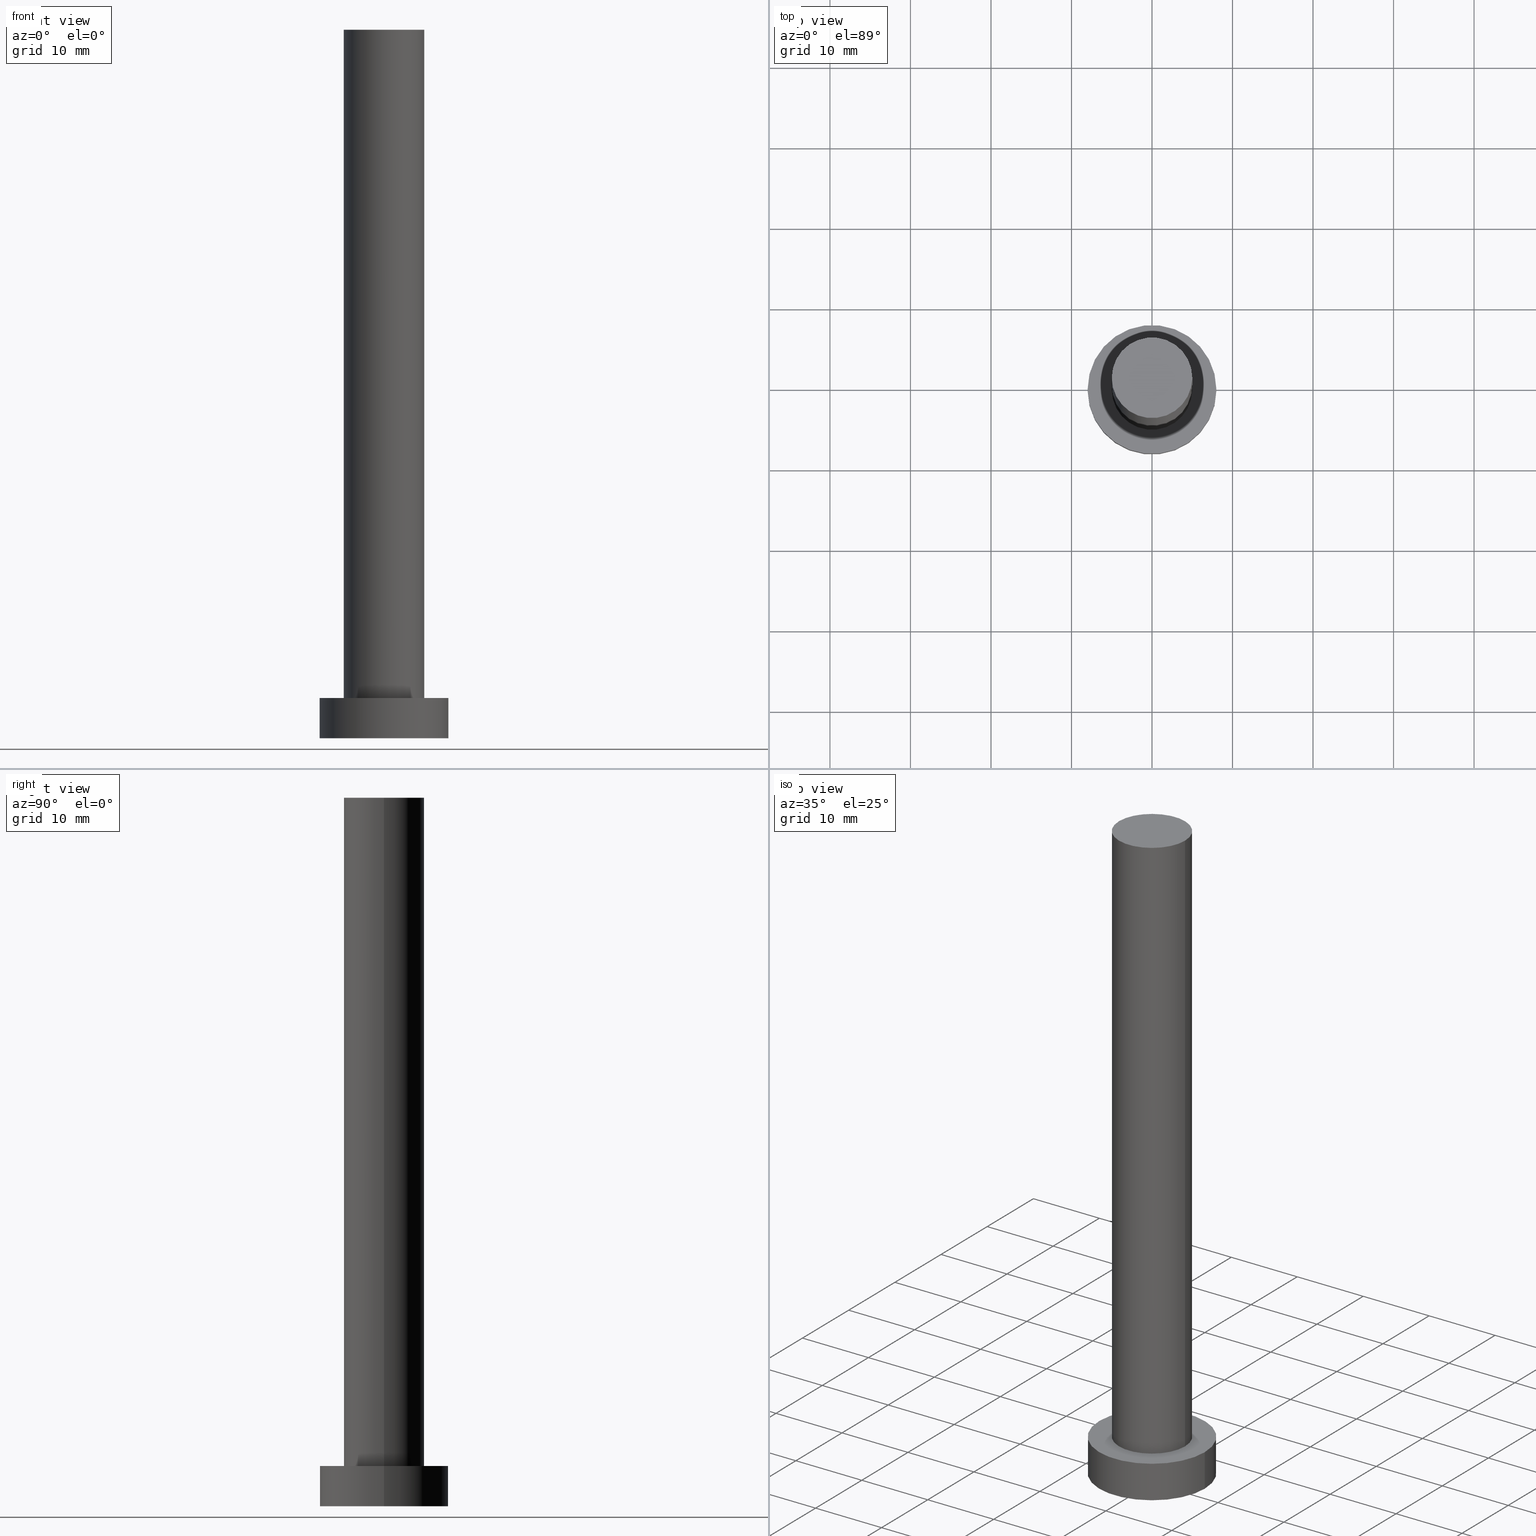
[diagram: canonical four-view strip — front | top / right | iso, engineering-drawing reading convention]
A machine part, canonical four-view strip (front | top / right | iso — engineering-drawing reading convention). The complete STEP part file that produces these views, byte-faithful:
ISO-10303-21;
HEADER;
FILE_DESCRIPTION (( 'STEP AP203' ),
    '1' );
FILE_NAME ('6906.STEP',
    '2023-04-06T08:41:40',
    ( '' ),
    ( '' ),
    'SwSTEP 2.0',
    'SolidWorks 2019',
    '' );
FILE_SCHEMA (( 'CONFIG_CONTROL_DESIGN' ));
ENDSEC;

DATA;
#1 = CARTESIAN_POINT ( 'NONE',  ( 5.000000000000000888, 6.123233995736767268E-16, 88.00000000000001421 ) ) ;
#2 = AXIS2_PLACEMENT_3D ( 'NONE', #106, #29, #48 ) ;
#3 = AXIS2_PLACEMENT_3D ( 'NONE', #208, #242, #210 ) ;
#4 = DIRECTION ( 'NONE',  ( 1.000000000000000000, 0.000000000000000000, -0.000000000000000000 ) ) ;
#5 = CARTESIAN_POINT ( 'NONE',  ( -5.000000000000000888, 0.000000000000000000, 5.000000000000000000 ) ) ;
#6 = ADVANCED_FACE ( 'NONE', ( #42 ), #15, .T. ) ;
#7 = APPROVAL_DATE_TIME ( #195, #139 ) ;
#8 = CALENDAR_DATE ( 2023, 6, 4 ) ;
#9 = LOCAL_TIME ( 10, 41, 40.00000000000000000, #111 ) ;
#10 = ADVANCED_FACE ( 'NONE', ( #181 ), #80, .T. ) ;
#11 = PERSON_AND_ORGANIZATION_ROLE ( 'creator' ) ;
#12 = APPROVAL_DATE_TIME ( #213, #131 ) ;
#13 = AXIS2_PLACEMENT_3D ( 'NONE', #28, #238, #243 ) ;
#14 = EDGE_CURVE ( 'NONE', #219, #202, #179, .T. ) ;
#15 = CYLINDRICAL_SURFACE ( 'NONE', #100, 8.000000000000000000 ) ;
#16 = DIRECTION ( 'NONE',  ( -1.000000000000000000, 0.000000000000000000, 0.000000000000000000 ) ) ;
#17 = LOCAL_TIME ( 10, 41, 40.00000000000000000, #174 ) ;
#18 = ORIENTED_EDGE ( 'NONE', *, *, #31, .F. ) ;
#19 = FACE_OUTER_BOUND ( 'NONE', #164, .T. ) ;
#20 = ORIENTED_EDGE ( 'NONE', *, *, #201, .T. ) ;
#21 = ADVANCED_FACE ( 'NONE', ( #19 ), #235, .T. ) ;
#22 = AXIS2_PLACEMENT_3D ( 'NONE', #192, #225, #171 ) ;
#23 = DIRECTION ( 'NONE',  ( -0.000000000000000000, -0.000000000000000000, -1.000000000000000000 ) ) ;
#24 = CARTESIAN_POINT ( 'NONE',  ( 0.000000000000000000, 0.000000000000000000, 5.000000000000000000 ) ) ;
#25 = PERSON ( 'NEUR�EN�', 'NEUR�EN�', 'NEUR�EN�', ('NEUR�EN�'), ('NEUR�EN�'), ('NEUR�EN�') ) ;
#26 = DIRECTION ( 'NONE',  ( 1.000000000000000000, 0.000000000000000000, -0.000000000000000000 ) ) ;
#27 = PRODUCT ( '6906', '6906', '', ( #88 ) ) ;
#28 = CARTESIAN_POINT ( 'NONE',  ( 0.000000000000000000, 0.000000000000000000, 5.000000000000000000 ) ) ;
#29 = DIRECTION ( 'NONE',  ( -0.000000000000000000, -0.000000000000000000, -1.000000000000000000 ) ) ;
#30 = PERSON_AND_ORGANIZATION_ROLE ( 'design_supplier' ) ;
#31 = EDGE_CURVE ( 'NONE', #119, #205, #132, .T. ) ;
#32 = PERSON_AND_ORGANIZATION ( #25, #92 ) ;
#33 = APPLICATION_PROTOCOL_DEFINITION ( 'international standard', 'config_control_design', 1994, #34 ) ;
#34 = APPLICATION_CONTEXT ( 'configuration controlled 3d designs of mechanical parts and assemblies' ) ;
#35 = DATE_TIME_ROLE ( 'classification_date' ) ;
#36 = PRODUCT_DEFINITION ( 'NEZN�M�', '', #121, #198 ) ;
#37 = CC_DESIGN_APPROVAL ( #191, ( #121 ) ) ;
#38 = ORIENTED_EDGE ( 'NONE', *, *, #239, .T. ) ;
#39 = ORIENTED_EDGE ( 'NONE', *, *, #196, .T. ) ;
#40 = ORIENTED_EDGE ( 'NONE', *, *, #31, .T. ) ;
#41 = AXIS2_PLACEMENT_3D ( 'NONE', #177, #149, #245 ) ;
#42 = FACE_OUTER_BOUND ( 'NONE', #218, .T. ) ;
#43 = VERTEX_POINT ( 'NONE', #86 ) ;
#44 = DIRECTION ( 'NONE',  ( 0.000000000000000000, 0.000000000000000000, 1.000000000000000000 ) ) ;
#45 = CIRCLE ( 'NONE', #193, 5.000000000000000888 ) ;
#46 = AXIS2_PLACEMENT_3D ( 'NONE', #95, #252, #162 ) ;
#47 = PLANE ( 'NONE',  #230 ) ;
#48 = DIRECTION ( 'NONE',  ( -1.000000000000000000, 0.000000000000000000, 0.000000000000000000 ) ) ;
#49 = CC_DESIGN_PERSON_AND_ORGANIZATION_ASSIGNMENT ( #215, #127, ( #27 ) ) ;
#50 = CARTESIAN_POINT ( 'NONE',  ( -8.000000000000000000, 0.000000000000000000, 5.000000000000000000 ) ) ;
#51 = SECURITY_CLASSIFICATION ( '', '', #152 ) ;
#52 = CIRCLE ( 'NONE', #113, 8.000000000000000000 ) ;
#53 = FACE_OUTER_BOUND ( 'NONE', #78, .T. ) ;
#54 = APPLICATION_PROTOCOL_DEFINITION ( 'international standard', 'config_control_design', 1994, #153 ) ;
#55 = UNCERTAINTY_MEASURE_WITH_UNIT (LENGTH_MEASURE( 1.000000000000000082E-05 ), #141, 'distance_accuracy_value', 'NONE');
#56 = PRODUCT_DEFINITION_SHAPE ( 'NONE', 'NONE',  #36 ) ;
#57 = PERSON_AND_ORGANIZATION_ROLE ( 'creator' ) ;
#58 = AXIS2_PLACEMENT_3D ( 'NONE', #103, #226, #221 ) ;
#59 = COORDINATED_UNIVERSAL_TIME_OFFSET ( 1, 0, .AHEAD. ) ;
#60 = VECTOR ( 'NONE', #23, 1000.000000000000000 ) ;
#61 = ORIENTED_EDGE ( 'NONE', *, *, #144, .F. ) ;
#62 = ORIENTED_EDGE ( 'NONE', *, *, #136, .T. ) ;
#63 = CARTESIAN_POINT ( 'NONE',  ( 0.000000000000000000, 0.000000000000000000, 88.00000000000001421 ) ) ;
#64 = DIRECTION ( 'NONE',  ( -1.000000000000000000, 0.000000000000000000, 0.000000000000000000 ) ) ;
#65 = EDGE_LOOP ( 'NONE', ( #96, #203, #138, #200 ) ) ;
#66 = PRODUCT_RELATED_PRODUCT_CATEGORY ( 'detail', '', ( #27 ) ) ;
#67 = CARTESIAN_POINT ( 'NONE',  ( 5.000000000000000888, 6.123233995736767268E-16, 5.000000000000000000 ) ) ;
#68 = DIRECTION ( 'NONE',  ( 0.000000000000000000, 0.000000000000000000, 1.000000000000000000 ) ) ;
#69 = CARTESIAN_POINT ( 'NONE',  ( 0.000000000000000000, 0.000000000000000000, 5.000000000000000000 ) ) ;
#70 = EDGE_CURVE ( 'NONE', #184, #159, #166, .T. ) ;
#71 = DIRECTION ( 'NONE',  ( 0.000000000000000000, 0.000000000000000000, 1.000000000000000000 ) ) ;
#72 = CYLINDRICAL_SURFACE ( 'NONE', #2, 5.000000000000000888 ) ;
#73 = CIRCLE ( 'NONE', #13, 8.000000000000000000 ) ;
#74 = PERSON_AND_ORGANIZATION ( #25, #92 ) ;
#75 =( NAMED_UNIT ( * ) PLANE_ANGLE_UNIT ( ) SI_UNIT ( $, .RADIAN. ) );
#76 = PERSON_AND_ORGANIZATION ( #25, #92 ) ;
#77 = APPROVAL_ROLE ( '' ) ;
#78 = EDGE_LOOP ( 'NONE', ( #38, #250 ) ) ;
#79 = ORIENTED_EDGE ( 'NONE', *, *, #212, .T. ) ;
#80 = CYLINDRICAL_SURFACE ( 'NONE', #46, 8.000000000000000000 ) ;
#81 = DIRECTION ( 'NONE',  ( 0.000000000000000000, 0.000000000000000000, 1.000000000000000000 ) ) ;
#82 = APPROVAL_PERSON_ORGANIZATION ( #112, #139, #77 ) ;
#83 = LINE ( 'NONE', #120, #60 ) ;
#84 = DIRECTION ( 'NONE',  ( 0.000000000000000000, 0.000000000000000000, 1.000000000000000000 ) ) ;
#85 = FACE_OUTER_BOUND ( 'NONE', #65, .T. ) ;
#86 = CARTESIAN_POINT ( 'NONE',  ( -8.000000000000000000, 0.000000000000000000, 5.000000000000000000 ) ) ;
#87 = CARTESIAN_POINT ( 'NONE',  ( 8.000000000000000000, 9.797174393178825657E-16, 0.000000000000000000 ) ) ;
#88 = MECHANICAL_CONTEXT ( 'NONE', #153, 'mechanical' ) ;
#89 = APPROVAL_STATUS ( 'not_yet_approved' ) ;
#90 = EDGE_CURVE ( 'NONE', #205, #119, #168, .T. ) ;
#91 = CALENDAR_DATE ( 2023, 6, 4 ) ;
#92 = ORGANIZATION ( 'NEUR�EN�', 'NEUR�EN�', '' ) ;
#93 = APPROVAL_STATUS ( 'not_yet_approved' ) ;
#94 = CARTESIAN_POINT ( 'NONE',  ( 0.000000000000000000, 0.000000000000000000, 5.000000000000000000 ) ) ;
#95 = CARTESIAN_POINT ( 'NONE',  ( 0.000000000000000000, 0.000000000000000000, 5.000000000000000000 ) ) ;
#96 = ORIENTED_EDGE ( 'NONE', *, *, #212, .F. ) ;
#97 = CC_DESIGN_DATE_AND_TIME_ASSIGNMENT ( #216, #35, ( #51 ) ) ;
#98 = ORIENTED_EDGE ( 'NONE', *, *, #239, .F. ) ;
#99 = EDGE_LOOP ( 'NONE', ( #61, #134, #249, #117 ) ) ;
#100 = AXIS2_PLACEMENT_3D ( 'NONE', #94, #118, #16 ) ;
#101 = FACE_OUTER_BOUND ( 'NONE', #133, .T. ) ;
#102 = ADVANCED_FACE ( 'NONE', ( #140 ), #169, .F. ) ;
#103 = CARTESIAN_POINT ( 'NONE',  ( 0.000000000000000000, 0.000000000000000000, 88.00000000000001421 ) ) ;
#104 = CARTESIAN_POINT ( 'NONE',  ( 0.000000000000000000, 0.000000000000000000, 5.000000000000000000 ) ) ;
#105 = CIRCLE ( 'NONE', #22, 8.000000000000000000 ) ;
#106 = CARTESIAN_POINT ( 'NONE',  ( 0.000000000000000000, 0.000000000000000000, 88.00000000000001421 ) ) ;
#107 = APPROVAL_ROLE ( '' ) ;
#108 = ADVANCED_FACE ( 'NONE', ( #101 ), #142, .T. ) ;
#109 = PERSON_AND_ORGANIZATION ( #25, #92 ) ;
#110 = DATE_TIME_ROLE ( 'creation_date' ) ;
#111 = COORDINATED_UNIVERSAL_TIME_OFFSET ( 1, 0, .AHEAD. ) ;
#112 = PERSON_AND_ORGANIZATION ( #25, #92 ) ;
#113 = AXIS2_PLACEMENT_3D ( 'NONE', #24, #44, #145 ) ;
#114 = VERTEX_POINT ( 'NONE', #189 ) ;
#115 = APPROVAL_PERSON_ORGANIZATION ( #32, #131, #246 ) ;
#116 = CIRCLE ( 'NONE', #151, 8.000000000000000000 ) ;
#117 = ORIENTED_EDGE ( 'NONE', *, *, #201, .F. ) ;
#118 = DIRECTION ( 'NONE',  ( -0.000000000000000000, -0.000000000000000000, -1.000000000000000000 ) ) ;
#119 = VERTEX_POINT ( 'NONE', #1 ) ;
#120 = CARTESIAN_POINT ( 'NONE',  ( -5.000000000000000888, 0.000000000000000000, 88.00000000000001421 ) ) ;
#121 = PRODUCT_DEFINITION_FORMATION_WITH_SPECIFIED_SOURCE ( 'LIBOVOLN�', '', #27, .NOT_KNOWN. ) ;
#122 = CARTESIAN_POINT ( 'NONE',  ( 8.000000000000000000, 9.797174393178825657E-16, 5.000000000000000000 ) ) ;
#123 = CARTESIAN_POINT ( 'NONE',  ( 0.000000000000000000, 0.000000000000000000, 88.00000000000001421 ) ) ;
#124 = CARTESIAN_POINT ( 'NONE',  ( 5.000000000000000888, 6.123233995736767268E-16, 88.00000000000001421 ) ) ;
#125 = DIRECTION ( 'NONE',  ( 0.000000000000000000, 0.000000000000000000, 1.000000000000000000 ) ) ;
#126 = MANIFOLD_SOLID_BREP ( 'P�idat vysunut�m3', #158 ) ;
#127 = PERSON_AND_ORGANIZATION_ROLE ( 'design_owner' ) ;
#128 = VECTOR ( 'NONE', #207, 1000.000000000000000 ) ;
#129 = CALENDAR_DATE ( 2023, 6, 4 ) ;
#130 = PERSON_AND_ORGANIZATION ( #25, #92 ) ;
#131 = APPROVAL ( #89, 'NEUR�EN�' ) ;
#132 = CIRCLE ( 'NONE', #214, 5.000000000000000888 ) ;
#133 = EDGE_LOOP ( 'NONE', ( #161, #40 ) ) ;
#134 = ORIENTED_EDGE ( 'NONE', *, *, #70, .T. ) ;
#135 = EDGE_LOOP ( 'NONE', ( #233, #156 ) ) ;
#136 = EDGE_CURVE ( 'NONE', #114, #159, #116, .T. ) ;
#137 = CARTESIAN_POINT ( 'NONE',  ( 0.000000000000000000, 0.000000000000000000, 88.00000000000001421 ) ) ;
#138 = ORIENTED_EDGE ( 'NONE', *, *, #251, .T. ) ;
#139 = APPROVAL ( #93, 'NEUR�EN�' ) ;
#140 = FACE_OUTER_BOUND ( 'NONE', #237, .T. ) ;
#141 =( LENGTH_UNIT ( ) NAMED_UNIT ( * ) SI_UNIT ( .MILLI., .METRE. ) );
#142 = PLANE ( 'NONE',  #167 ) ;
#143 = CARTESIAN_POINT ( 'NONE',  ( 8.000000000000000000, 9.797174393178825657E-16, 5.000000000000000000 ) ) ;
#144 = EDGE_CURVE ( 'NONE', #184, #43, #52, .T. ) ;
#145 = DIRECTION ( 'NONE',  ( 1.000000000000000000, 0.000000000000000000, 0.000000000000000000 ) ) ;
#146 = VECTOR ( 'NONE', #187, 1000.000000000000000 ) ;
#147 = APPROVAL_STATUS ( 'not_yet_approved' ) ;
#148 = CC_DESIGN_DATE_AND_TIME_ASSIGNMENT ( #248, #110, ( #36 ) ) ;
#149 = DIRECTION ( 'NONE',  ( 0.000000000000000000, 0.000000000000000000, 1.000000000000000000 ) ) ;
#150 = CC_DESIGN_APPROVAL ( #139, ( #51 ) ) ;
#151 = AXIS2_PLACEMENT_3D ( 'NONE', #206, #84, #165 ) ;
#152 = SECURITY_CLASSIFICATION_LEVEL ( 'unclassified' ) ;
#153 = APPLICATION_CONTEXT ( 'configuration controlled 3d designs of mechanical parts and assemblies' ) ;
#154 = CALENDAR_DATE ( 2023, 6, 4 ) ;
#155 = ADVANCED_FACE ( 'NONE', ( #241, #53 ), #47, .T. ) ;
#156 = ORIENTED_EDGE ( 'NONE', *, *, #196, .F. ) ;
#157 = CC_DESIGN_SECURITY_CLASSIFICATION ( #51, ( #121 ) ) ;
#158 = CLOSED_SHELL ( 'NONE', ( #21, #10, #6, #155, #102, #170, #108 ) ) ;
#159 = VERTEX_POINT ( 'NONE', #87 ) ;
#160 = CC_DESIGN_PERSON_AND_ORGANIZATION_ASSIGNMENT ( #74, #57, ( #121 ) ) ;
#161 = ORIENTED_EDGE ( 'NONE', *, *, #90, .T. ) ;
#162 = DIRECTION ( 'NONE',  ( -1.000000000000000000, 0.000000000000000000, 0.000000000000000000 ) ) ;
#163 = LOCAL_TIME ( 10, 41, 40.00000000000000000, #180 ) ;
#164 = EDGE_LOOP ( 'NONE', ( #18, #79, #39, #185 ) ) ;
#165 = DIRECTION ( 'NONE',  ( 1.000000000000000000, 0.000000000000000000, 0.000000000000000000 ) ) ;
#166 = LINE ( 'NONE', #122, #128 ) ;
#167 = AXIS2_PLACEMENT_3D ( 'NONE', #123, #68, #26 ) ;
#168 = CIRCLE ( 'NONE', #58, 5.000000000000000888 ) ;
#169 = PLANE ( 'NONE',  #3 ) ;
#170 = ADVANCED_FACE ( 'NONE', ( #85 ), #72, .T. ) ;
#171 = DIRECTION ( 'NONE',  ( 1.000000000000000000, 0.000000000000000000, 0.000000000000000000 ) ) ;
#172 = SHAPE_DEFINITION_REPRESENTATION ( #56, #176 ) ;
#173 = VECTOR ( 'NONE', #209, 1000.000000000000000 ) ;
#174 = COORDINATED_UNIVERSAL_TIME_OFFSET ( 1, 0, .AHEAD. ) ;
#175 = CALENDAR_DATE ( 2023, 6, 4 ) ;
#176 = ADVANCED_BREP_SHAPE_REPRESENTATION ( '6906', ( #126, #41 ), #186 ) ;
#177 = CARTESIAN_POINT ( 'NONE',  ( 0.000000000000000000, 0.000000000000000000, 0.000000000000000000 ) ) ;
#178 = CC_DESIGN_APPROVAL ( #131, ( #36 ) ) ;
#179 = CIRCLE ( 'NONE', #244, 5.000000000000000888 ) ;
#180 = COORDINATED_UNIVERSAL_TIME_OFFSET ( 1, 0, .AHEAD. ) ;
#181 = FACE_OUTER_BOUND ( 'NONE', #99, .T. ) ;
#182 = APPROVAL_PERSON_ORGANIZATION ( #247, #191, #107 ) ;
#183 = CARTESIAN_POINT ( 'NONE',  ( 0.000000000000000000, 0.000000000000000000, 5.000000000000000000 ) ) ;
#184 = VERTEX_POINT ( 'NONE', #143 ) ;
#185 = ORIENTED_EDGE ( 'NONE', *, *, #251, .F. ) ;
#186 =( GEOMETRIC_REPRESENTATION_CONTEXT ( 3 ) GLOBAL_UNCERTAINTY_ASSIGNED_CONTEXT ( ( #55 ) ) GLOBAL_UNIT_ASSIGNED_CONTEXT ( ( #141, #75, #228 ) ) REPRESENTATION_CONTEXT ( 'NONE', 'WORKASPACE' ) );
#187 = DIRECTION ( 'NONE',  ( -0.000000000000000000, -0.000000000000000000, -1.000000000000000000 ) ) ;
#188 = CC_DESIGN_PERSON_AND_ORGANIZATION_ASSIGNMENT ( #109, #231, ( #51 ) ) ;
#189 = CARTESIAN_POINT ( 'NONE',  ( -8.000000000000000000, 0.000000000000000000, 0.000000000000000000 ) ) ;
#190 = LINE ( 'NONE', #124, #173 ) ;
#191 = APPROVAL ( #147, 'NEUR�EN�' ) ;
#192 = CARTESIAN_POINT ( 'NONE',  ( 0.000000000000000000, 0.000000000000000000, 0.000000000000000000 ) ) ;
#193 = AXIS2_PLACEMENT_3D ( 'NONE', #69, #71, #194 ) ;
#194 = DIRECTION ( 'NONE',  ( 1.000000000000000000, 0.000000000000000000, 0.000000000000000000 ) ) ;
#195 = DATE_AND_TIME ( #154, #17 ) ;
#196 = EDGE_CURVE ( 'NONE', #202, #219, #45, .T. ) ;
#197 = AXIS2_PLACEMENT_3D ( 'NONE', #63, #236, #64 ) ;
#198 = DESIGN_CONTEXT ( 'detailed design', #34, 'design' ) ;
#199 = EDGE_CURVE ( 'NONE', #159, #114, #105, .T. ) ;
#200 = ORIENTED_EDGE ( 'NONE', *, *, #14, .T. ) ;
#201 = EDGE_CURVE ( 'NONE', #43, #114, #240, .T. ) ;
#202 = VERTEX_POINT ( 'NONE', #67 ) ;
#203 = ORIENTED_EDGE ( 'NONE', *, *, #90, .F. ) ;
#204 = DIRECTION ( 'NONE',  ( 1.000000000000000000, 0.000000000000000000, 0.000000000000000000 ) ) ;
#205 = VERTEX_POINT ( 'NONE', #254 ) ;
#206 = CARTESIAN_POINT ( 'NONE',  ( 0.000000000000000000, 0.000000000000000000, 0.000000000000000000 ) ) ;
#207 = DIRECTION ( 'NONE',  ( -0.000000000000000000, -0.000000000000000000, -1.000000000000000000 ) ) ;
#208 = CARTESIAN_POINT ( 'NONE',  ( 0.000000000000000000, 0.000000000000000000, 0.000000000000000000 ) ) ;
#209 = DIRECTION ( 'NONE',  ( -0.000000000000000000, -0.000000000000000000, -1.000000000000000000 ) ) ;
#210 = DIRECTION ( 'NONE',  ( 1.000000000000000000, 0.000000000000000000, -0.000000000000000000 ) ) ;
#211 = COORDINATED_UNIVERSAL_TIME_OFFSET ( 1, 0, .AHEAD. ) ;
#212 = EDGE_CURVE ( 'NONE', #119, #202, #190, .T. ) ;
#213 = DATE_AND_TIME ( #175, #9 ) ;
#214 = AXIS2_PLACEMENT_3D ( 'NONE', #137, #125, #223 ) ;
#215 = PERSON_AND_ORGANIZATION ( #25, #92 ) ;
#216 = DATE_AND_TIME ( #129, #227 ) ;
#217 = DATE_AND_TIME ( #8, #222 ) ;
#218 = EDGE_LOOP ( 'NONE', ( #220, #98, #20, #62 ) ) ;
#219 = VERTEX_POINT ( 'NONE', #5 ) ;
#220 = ORIENTED_EDGE ( 'NONE', *, *, #70, .F. ) ;
#221 = DIRECTION ( 'NONE',  ( 1.000000000000000000, 0.000000000000000000, 0.000000000000000000 ) ) ;
#222 = LOCAL_TIME ( 10, 41, 40.00000000000000000, #211 ) ;
#223 = DIRECTION ( 'NONE',  ( 1.000000000000000000, 0.000000000000000000, 0.000000000000000000 ) ) ;
#224 = DIRECTION ( 'NONE',  ( 0.000000000000000000, 0.000000000000000000, 1.000000000000000000 ) ) ;
#225 = DIRECTION ( 'NONE',  ( 0.000000000000000000, 0.000000000000000000, 1.000000000000000000 ) ) ;
#226 = DIRECTION ( 'NONE',  ( 0.000000000000000000, 0.000000000000000000, 1.000000000000000000 ) ) ;
#227 = LOCAL_TIME ( 10, 41, 40.00000000000000000, #59 ) ;
#228 =( NAMED_UNIT ( * ) SI_UNIT ( $, .STERADIAN. ) SOLID_ANGLE_UNIT ( ) );
#229 = APPROVAL_DATE_TIME ( #217, #191 ) ;
#230 = AXIS2_PLACEMENT_3D ( 'NONE', #104, #224, #4 ) ;
#231 = PERSON_AND_ORGANIZATION_ROLE ( 'classification_officer' ) ;
#232 = CC_DESIGN_PERSON_AND_ORGANIZATION_ASSIGNMENT ( #76, #30, ( #121 ) ) ;
#233 = ORIENTED_EDGE ( 'NONE', *, *, #14, .F. ) ;
#234 = ORIENTED_EDGE ( 'NONE', *, *, #136, .F. ) ;
#235 = CYLINDRICAL_SURFACE ( 'NONE', #197, 5.000000000000000888 ) ;
#236 = DIRECTION ( 'NONE',  ( -0.000000000000000000, -0.000000000000000000, -1.000000000000000000 ) ) ;
#237 = EDGE_LOOP ( 'NONE', ( #234, #253 ) ) ;
#238 = DIRECTION ( 'NONE',  ( 0.000000000000000000, 0.000000000000000000, 1.000000000000000000 ) ) ;
#239 = EDGE_CURVE ( 'NONE', #43, #184, #73, .T. ) ;
#240 = LINE ( 'NONE', #50, #146 ) ;
#241 = FACE_BOUND ( 'NONE', #135, .T. ) ;
#242 = DIRECTION ( 'NONE',  ( 0.000000000000000000, 0.000000000000000000, 1.000000000000000000 ) ) ;
#243 = DIRECTION ( 'NONE',  ( 1.000000000000000000, 0.000000000000000000, 0.000000000000000000 ) ) ;
#244 = AXIS2_PLACEMENT_3D ( 'NONE', #183, #81, #204 ) ;
#245 = DIRECTION ( 'NONE',  ( 1.000000000000000000, 0.000000000000000000, 0.000000000000000000 ) ) ;
#246 = APPROVAL_ROLE ( '' ) ;
#247 = PERSON_AND_ORGANIZATION ( #25, #92 ) ;
#248 = DATE_AND_TIME ( #91, #163 ) ;
#249 = ORIENTED_EDGE ( 'NONE', *, *, #199, .T. ) ;
#250 = ORIENTED_EDGE ( 'NONE', *, *, #144, .T. ) ;
#251 = EDGE_CURVE ( 'NONE', #205, #219, #83, .T. ) ;
#252 = DIRECTION ( 'NONE',  ( -0.000000000000000000, -0.000000000000000000, -1.000000000000000000 ) ) ;
#253 = ORIENTED_EDGE ( 'NONE', *, *, #199, .F. ) ;
#254 = CARTESIAN_POINT ( 'NONE',  ( -5.000000000000000888, 0.000000000000000000, 88.00000000000001421 ) ) ;
#255 = CC_DESIGN_PERSON_AND_ORGANIZATION_ASSIGNMENT ( #130, #11, ( #36 ) ) ;
ENDSEC;
END-ISO-10303-21;
